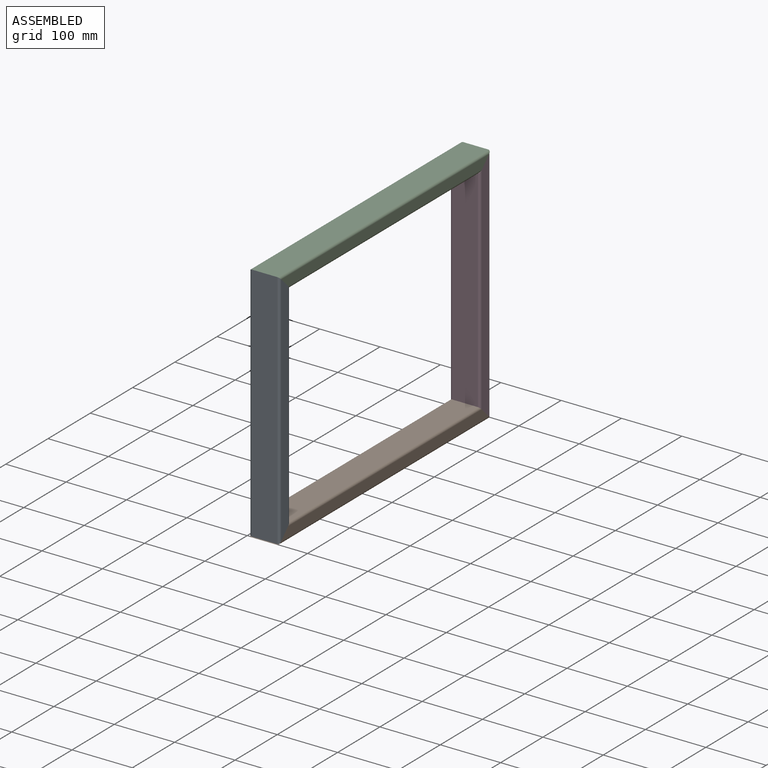
[diagram: assembled view]
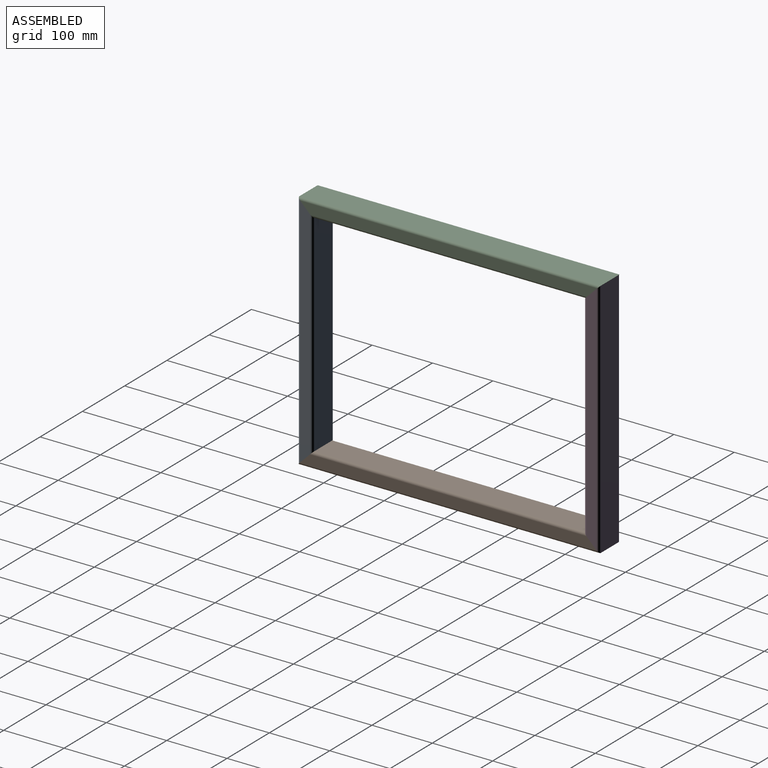
[diagram: assembled view, second angle]
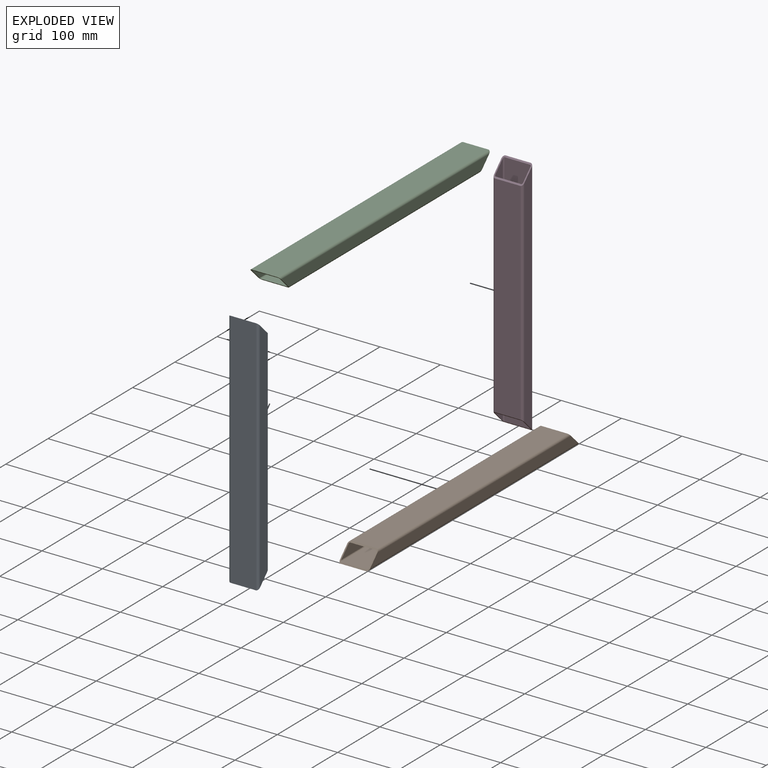
[diagram: exploded view]
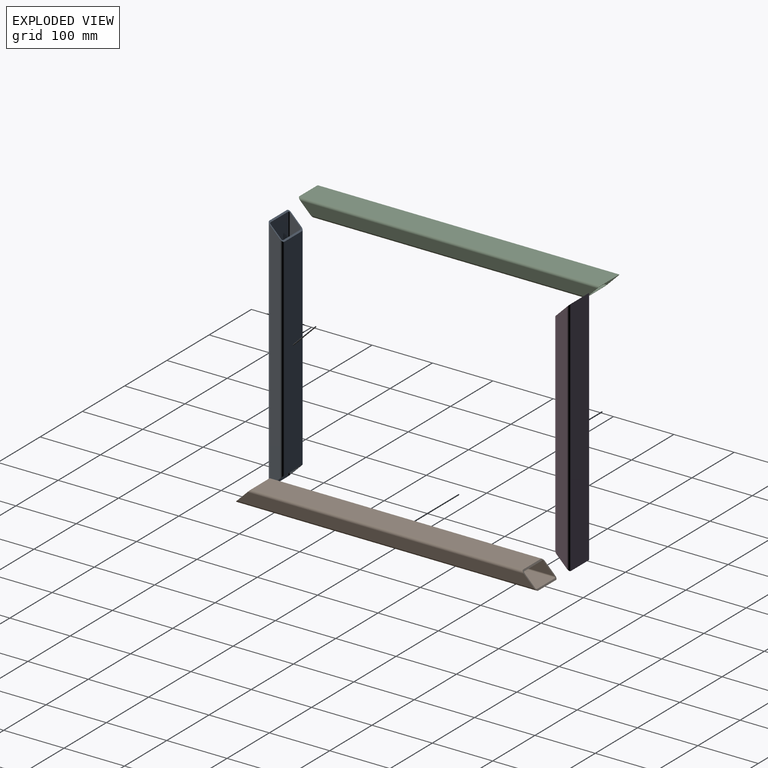
[diagram: exploded view, second angle]
ASSEMBLY  parts=4 mates=7
PART A: 18 faces, bbox 50x400x25 mm
  f0: cylinder r=4mm len=358mm, axis (0,1,0), area 2217.4mm2, adj f2,f4,f8,f9
  f1: cylinder r=4mm len=358mm, axis (0,1,0), area 2217.4mm2, adj f2,f6,f8,f9
  f2: plane 350x42mm, normal (0,0,-1), area 14700mm2, adj f0,f1,f8,f9
  f3: cylinder r=4mm len=400mm, axis (0,1,0), area 2495mm2, adj f4,f7,f8,f9
  f4: plane 392x17mm, normal (-1,0,0), area 6375mm2, adj f0,f3,f8,f9
  f5: cylinder r=4mm len=400mm, axis (0,1,0), area 2495mm2, adj f6,f7,f8,f9
  f6: plane 392x17mm, normal (1,0,0), area 6375mm2, adj f1,f5,f8,f9
  f7: plane 400x42mm, normal (0,0,1), area 16800mm2, adj f3,f5,f8,f9
  f8: plane 50x25mm, normal (0,0.71,-0.71), area 387.1mm2, adj f0,f1,f2,f3,f4,f5,f6,f7
  f9: plane 50x25mm, normal (0,-0.71,-0.71), area 387.1mm2, adj f0,f1,f2,f3,f4,f5,f6,f7
  f10: cylinder r=2mm len=396mm, axis (0,1,0), area 1239.5mm2, adj f8,f9,f11,f17
  f11: plane 392x17mm, normal (-1,0,0), area 6375mm2, adj f8,f9,f10,f12
  f12: cylinder r=2mm len=358mm, axis (0,1,0), area 1116.7mm2, adj f8,f9,f11,f13
  f13: plane 354x42mm, normal (0,0,1), area 14868mm2, adj f8,f9,f12,f14
  f14: cylinder r=2mm len=358mm, axis (0,1,0), area 1116.7mm2, adj f8,f9,f13,f15
  f15: plane 392x17mm, normal (1,0,0), area 6375mm2, adj f8,f9,f14,f16
  f16: cylinder r=2mm len=396mm, axis (0,1,0), area 1239.5mm2, adj f8,f9,f15,f17
  f17: plane 396x42mm, normal (0,0,-1), area 16632mm2, adj f8,f9,f10,f16
PART B: 18 faces, bbox 50x500x25 mm
  f0: cylinder r=4mm len=500mm, axis (0,1,0), area 3123.3mm2, adj f6,f7,f8,f9
  f1: cylinder r=4mm len=500mm, axis (0,1,0), area 3123.3mm2, adj f5,f7,f8,f9
  f2: cylinder r=4mm len=458mm, axis (0,1,0), area 2845.7mm2, adj f4,f6,f8,f9
  f3: cylinder r=4mm len=458mm, axis (0,1,0), area 2845.7mm2, adj f4,f5,f8,f9
  f4: plane 450x42mm, normal (0,0,-1), area 18900mm2, adj f2,f3,f8,f9
  f5: plane 492x17mm, normal (-1,0,0), area 8075mm2, adj f1,f3,f8,f9
  f6: plane 492x17mm, normal (1,0,0), area 8075mm2, adj f0,f2,f8,f9
  f7: plane 500x42mm, normal (0,0,1), area 21000mm2, adj f0,f1,f8,f9
  f8: plane 50x25mm, normal (0,0.71,-0.71), area 387.1mm2, adj f0,f1,f2,f3,f4,f5,f6,f7
  f9: plane 50x25mm, normal (0,-0.71,-0.71), area 387.1mm2, adj f0,f1,f2,f3,f4,f5,f6,f7
  f10: cylinder r=2mm len=496mm, axis (0,1,0), area 1553.7mm2, adj f8,f9,f11,f17
  f11: plane 492x17mm, normal (-1,0,0), area 8075mm2, adj f8,f9,f10,f12
  f12: cylinder r=2mm len=458mm, axis (0,1,0), area 1430.8mm2, adj f8,f9,f11,f13
  f13: plane 454x42mm, normal (0,0,1), area 19068mm2, adj f8,f9,f12,f14
  f14: cylinder r=2mm len=458mm, axis (0,1,0), area 1430.8mm2, adj f8,f9,f13,f15
  f15: plane 492x17mm, normal (1,0,0), area 8075mm2, adj f8,f9,f14,f16
  f16: cylinder r=2mm len=496mm, axis (0,1,0), area 1553.7mm2, adj f8,f9,f15,f17
  f17: plane 496x42mm, normal (0,0,-1), area 20832mm2, adj f8,f9,f10,f16
PART C: same geometry as B
PART D: same geometry as A
PLACE A rot(axis=(1,0,0),90deg) t=(819.16,-359.52,200.75)mm
PLACE B rot(axis=(-1,0,0),180deg) t=(819.16,-122.77,12.5)mm
PLACE C t=(819.16,-122.02,388.25)mm
PLACE D rot(axis=(-1,0,0),90deg) t=(819.16,114.73,200)mm
MATE planar C.f6 <-> D.f6  axis (1,0,0) through (844.16,-122.02,388.35)mm
MATE planar B.f8 <-> A.f9  axis (0,-0.71,0.71) through (819.16,-360.27,12.5)mm
MATE planar D.f6 <-> B.f6  axis (1,0,0) through (844.16,114.86,200)mm
MATE planar A.f8 <-> C.f9  axis (0,0.71,0.71) through (819.16,-359.52,388.25)mm
MATE planar D.f9 <-> C.f8  axis (0,-0.71,0.71) through (819.16,114.73,387.5)mm
MATE planar C.f6 <-> A.f6  axis (1,0,0) through (844.16,-122.02,388.35)mm
MATE planar B.f9 <-> D.f8  axis (0,0.71,0.71) through (819.16,114.73,12.5)mm
